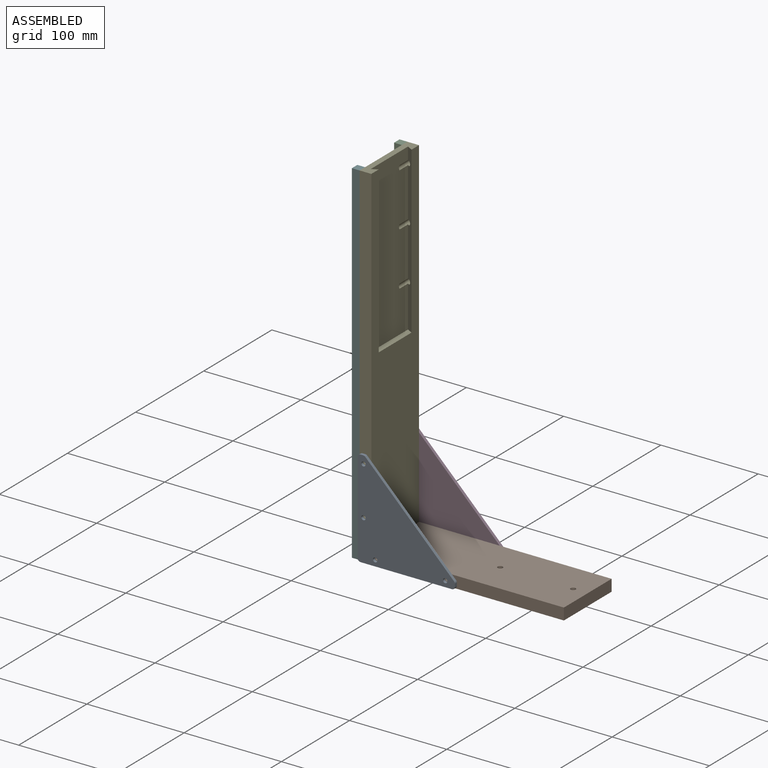
[diagram: assembled view]
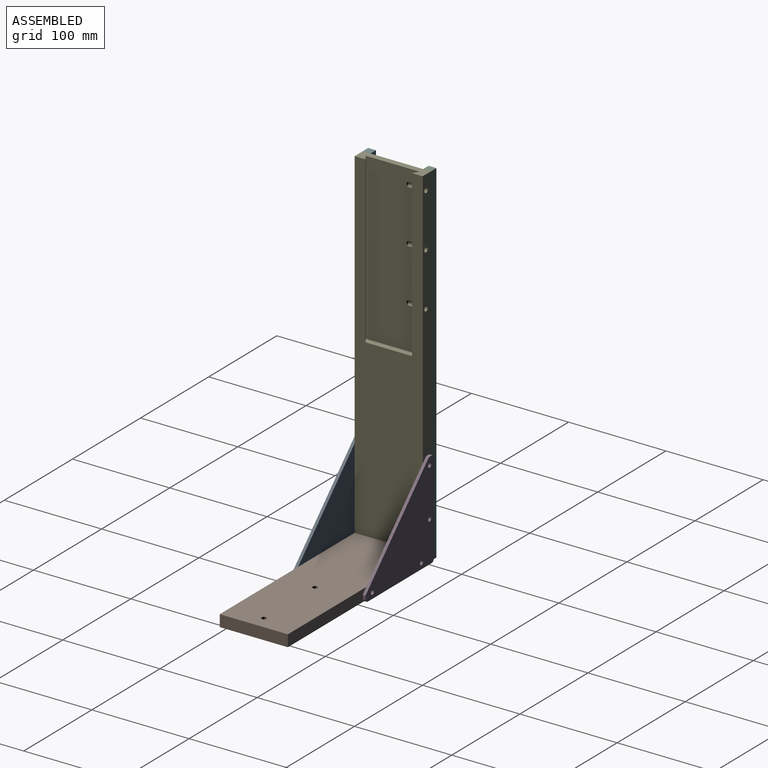
[diagram: assembled view, second angle]
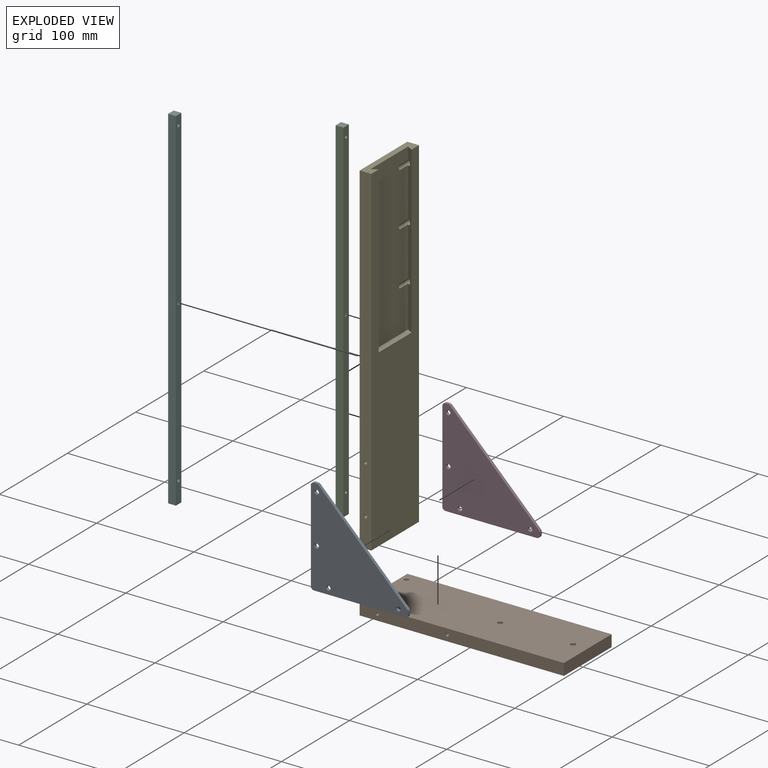
[diagram: exploded view]
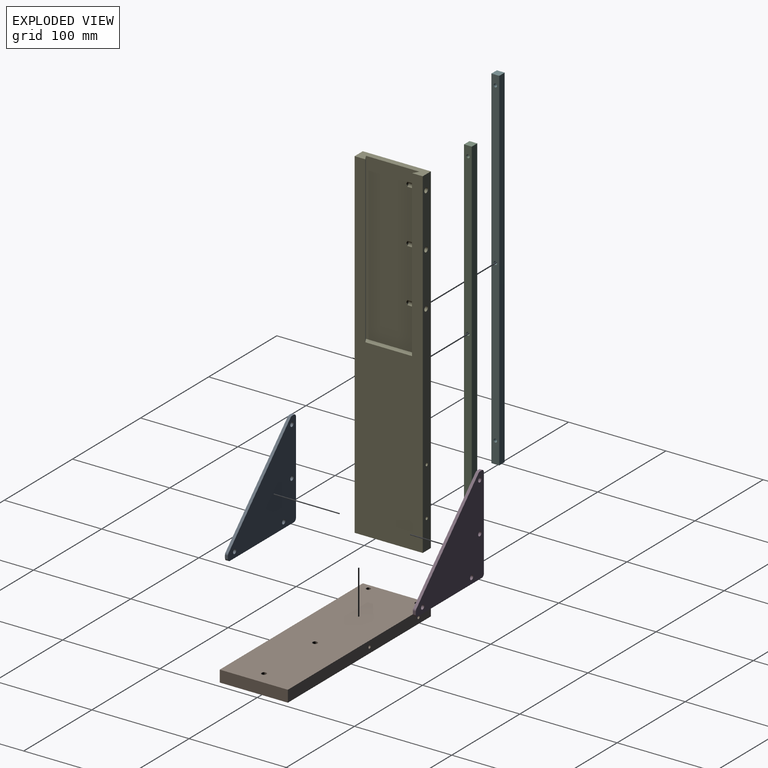
[diagram: exploded view, second angle]
ASSEMBLY  parts=6 mates=5
PART A: 16 faces, bbox 100x100x3 mm
  f0: plane 3x2.76mm, normal (0,1,0), area 8.3mm2, adj f1,f8,f9,f10
  f1: cylinder r=3mm len=3mm, axis (0,0,1), area 14.1mm2, adj f0,f2,f8,f9
  f2: plane 94x3mm, normal (-1,0,0), area 282mm2, adj f1,f3,f8,f9
  f3: cylinder r=3mm len=3mm, axis (0,0,1), area 14.1mm2, adj f2,f4,f8,f9
  f4: plane 94x3mm, normal (0,-1,0), area 282mm2, adj f3,f5,f8,f9
  f5: cylinder r=3mm len=3mm, axis (0,0,1), area 14.1mm2, adj f4,f6,f8,f9
  f6: plane 3x2.76mm, normal (1,0,0), area 8.3mm2, adj f5,f8,f9,f11
  f7: plane 91.24x91.24mm, normal (0.71,0.71,0), area 387.1mm2, adj f8,f9,f10,f11
  f8: plane 100x100mm, normal (0,0,1), area 5605.7mm2, adj f0,f1,f2,f3,f4,f5,f6,f7
  f9: plane 100x100mm, normal (0,0,-1), area 5605.7mm2, adj f0,f1,f2,f3,f4,f5,f6,f7
  f10: cylinder r=3mm len=3mm, axis (0,0,1), area 7.1mm2, adj f0,f7,f8,f9
  f11: cylinder r=3mm len=3mm, axis (0,0,1), area 7.1mm2, adj f6,f7,f8,f9
  f12: cylinder r=2.25mm len=4.5mm, axis (0,0,1), area 42.4mm2, adj f8,f9
  f13: cylinder r=2.25mm len=4.5mm, axis (0,0,1), area 42.4mm2, adj f8,f9
  f14: cylinder r=2.25mm len=4.5mm, axis (0,0,1), area 42.4mm2, adj f8,f9
  f15: cylinder r=2.25mm len=4.5mm, axis (0,0,1), area 42.4mm2, adj f8,f9
PART B: 22 faces, bbox 210x70x12 mm
  f0: plane 210x12mm, normal (0,-1,0), area 2503.9mm2, adj f1,f3,f4,f5,f19,f21
  f1: plane 70x12mm, normal (1,0,0), area 840mm2, adj f0,f2,f4,f5
  f2: plane 210x12mm, normal (0,1,0), area 2503.9mm2, adj f1,f3,f4,f5,f15,f17
  f3: plane 70x12mm, normal (-1,0,0), area 840mm2, adj f0,f2,f4,f5
  f4: plane 210x70mm, normal (0,0,1), area 14558.6mm2, adj f0,f1,f2,f3,f6,f7,f10,f13
  f5: plane 210x70mm, normal (0,0,-1), area 14627.3mm2, adj f0,f1,f2,f3,f6,f7,f8,f11
  f6: cylinder r=2.55mm len=12mm, axis (0,0,1), area 192.3mm2, adj f4,f5
  f7: cylinder r=2.55mm len=12mm, axis (0,0,1), area 192.3mm2, adj f4,f5
  f8: cylinder r=2.25mm len=8mm, axis (0,0,1), area 113.1mm2, adj f5,f9
  f9: plane 8x8mm, normal (0,0,1), area 34.4mm2, adj f8,f10
  f10: cylinder r=4mm len=8mm, axis (0,0,1), area 100.5mm2, adj f4,f9
  f11: cylinder r=2.25mm len=8mm, axis (0,0,1), area 113.1mm2, adj f5,f12
  f12: plane 8x8mm, normal (0,0,1), area 34.4mm2, adj f11,f13
  f13: cylinder r=4mm len=8mm, axis (0,0,1), area 100.5mm2, adj f4,f12
  f14: cone r=0mm half-angle=59deg, axis (0,1,0), area 9.4mm2, adj f15
  f15: cylinder r=1.6mm len=15mm, axis (0,1,0), area 150.8mm2, adj f2,f14
  f16: cone r=0mm half-angle=59deg, axis (0,1,0), area 9.4mm2, adj f17
  f17: cylinder r=1.6mm len=15mm, axis (0,1,0), area 150.8mm2, adj f2,f16
  f18: cone r=0mm half-angle=59deg, axis (0,-1,0), area 9.4mm2, adj f19
  f19: cylinder r=1.6mm len=15mm, axis (0,-1,0), area 150.8mm2, adj f0,f18
  f20: cone r=0mm half-angle=59deg, axis (0,-1,0), area 9.4mm2, adj f21
  f21: cylinder r=1.6mm len=15mm, axis (0,-1,0), area 150.8mm2, adj f0,f20
PART C: 12 faces, bbox 362x8x8 mm
  f0: plane 362x8mm, normal (0,-1,0), area 2896mm2, adj f1,f3,f4,f5
  f1: plane 8x8mm, normal (1,0,0), area 64mm2, adj f0,f2,f4,f5
  f2: plane 362x8mm, normal (0,1,0), area 2896mm2, adj f1,f3,f4,f5
  f3: plane 8x8mm, normal (-1,0,0), area 64mm2, adj f0,f2,f4,f5
  f4: plane 362x8mm, normal (0,0,1), area 2763.5mm2, adj f0,f1,f2,f3,f9,f10,f11
  f5: plane 362x8mm, normal (0,0,-1), area 2867.1mm2, adj f0,f1,f2,f3,f6,f7,f8
  f6: cylinder r=1.75mm len=6mm, axis (0,0,1), area 66mm2, adj f5,f10
  f7: cylinder r=1.75mm len=6mm, axis (0,0,1), area 66mm2, adj f5,f11
  f8: cylinder r=1.75mm len=6mm, axis (0,0,1), area 66mm2, adj f5,f9
  f9: cone r=1.75mm half-angle=45deg, axis (0,0,1), area 48.9mm2, adj f4,f8
  f10: cone r=1.75mm half-angle=45deg, axis (0,0,1), area 48.9mm2, adj f4,f6
  f11: cone r=1.75mm half-angle=45deg, axis (0,0,1), area 48.9mm2, adj f4,f7
PART D: same geometry as A
PART E: 40 faces, bbox 350x70x12 mm
  f0: plane 170x55mm, normal (0,0,1), area 9166.1mm2, adj f1,f7,f8,f9,f34,f35,f36,f37
  f1: plane 70x12mm, normal (1,0,0), area 531mm2, adj f0,f2,f3,f5,f6,f8,f9
  f2: plane 350x12mm, normal (0,-1,0), area 4122.6mm2, adj f1,f4,f5,f6,f19,f21,f35,f37
  f3: plane 350x12mm, normal (0,1,0), area 4183.9mm2, adj f1,f4,f5,f6,f15,f17
  f4: plane 70x12mm, normal (-1,0,0), area 823.9mm2, adj f2,f3,f5,f6,f11,f13
  f5: plane 350x70mm, normal (0,0,1), area 16340mm2, adj f1,f2,f3,f4,f7,f8,f9
  f6: plane 350x70mm, normal (0,0,-1), area 24470.5mm2, adj f1,f2,f3,f4,f23,f25,f27,f29
  f7: plane 55x6mm, normal (1,0,0), area 309mm2, adj f0,f5,f8,f9
  f8: plane 170x6mm, normal (0,0.86,-0.5), area 1128.1mm2, adj f0,f1,f5,f7,f35,f37,f39
  f9: plane 170x6mm, normal (0,-0.86,-0.5), area 1180.9mm2, adj f0,f1,f5,f7
  f10: cone r=0mm half-angle=59deg, axis (-1,0,0), area 9.4mm2, adj f11
  f11: cylinder r=1.6mm len=15mm, axis (-1,0,0), area 150.8mm2, adj f4,f10
  f12: cone r=0mm half-angle=59deg, axis (-1,0,0), area 9.4mm2, adj f13
  f13: cylinder r=1.6mm len=15mm, axis (-1,0,0), area 150.8mm2, adj f4,f12
  f14: cone r=0mm half-angle=59deg, axis (0,1,0), area 9.4mm2, adj f15
  f15: cylinder r=1.6mm len=15mm, axis (0,1,0), area 150.8mm2, adj f3,f14
  f16: cone r=0mm half-angle=59deg, axis (0,1,0), area 9.4mm2, adj f17
  f17: cylinder r=1.6mm len=15mm, axis (0,1,0), area 150.8mm2, adj f3,f16
  f18: cone r=0mm half-angle=59deg, axis (0,-1,0), area 9.4mm2, adj f19
  f19: cylinder r=1.6mm len=15mm, axis (0,-1,0), area 150.8mm2, adj f2,f18
  f20: cone r=0mm half-angle=59deg, axis (0,-1,0), area 9.4mm2, adj f21
  f21: cylinder r=1.6mm len=15mm, axis (0,-1,0), area 150.8mm2, adj f2,f20
  f22: cone r=0mm half-angle=59deg, axis (0,0,-1), area 5.7mm2, adj f23
  f23: cylinder r=1.25mm len=5mm, axis (0,0,-1), area 39.3mm2, adj f6,f22
  f24: cone r=0mm half-angle=59deg, axis (0,0,-1), area 5.7mm2, adj f25
  f25: cylinder r=1.25mm len=5mm, axis (0,0,-1), area 39.3mm2, adj f6,f24
  f26: cone r=0mm half-angle=59deg, axis (0,0,-1), area 5.7mm2, adj f27
  f27: cylinder r=1.25mm len=5mm, axis (0,0,-1), area 39.3mm2, adj f6,f26
  f28: cone r=0mm half-angle=59deg, axis (0,0,-1), area 5.7mm2, adj f29
  f29: cylinder r=1.25mm len=5mm, axis (0,0,-1), area 39.3mm2, adj f6,f28
  f30: cone r=0mm half-angle=59deg, axis (0,0,-1), area 5.7mm2, adj f31
  f31: cylinder r=1.25mm len=5mm, axis (0,0,-1), area 39.3mm2, adj f6,f30
  f32: cone r=0mm half-angle=59deg, axis (0,0,-1), area 5.7mm2, adj f33
  f33: cylinder r=1.25mm len=5mm, axis (0,0,-1), area 39.3mm2, adj f6,f32
  f34: cone r=0mm half-angle=59deg, axis (0,-1,0), area 6.1mm2, adj f0,f35
  f35: cylinder r=2.55mm len=20mm, axis (0,-1,0), area 207.5mm2, adj f0,f2,f8,f34
  f36: cone r=0mm half-angle=59deg, axis (0,-1,0), area 6.1mm2, adj f0,f37
  f37: cylinder r=2.55mm len=20mm, axis (0,-1,0), area 207.5mm2, adj f0,f2,f8,f36
  f38: cone r=0mm half-angle=59deg, axis (0,-1,0), area 6.1mm2, adj f0,f39
  f39: cylinder r=2.55mm len=20mm, axis (0,-1,0), area 207.5mm2, adj f0,f2,f8,f38
PART F: same geometry as C
PLACE A rot(axis=(-0.58,-0.58,-0.58),120deg) t=(-55.07,-38,38)mm
PLACE B rot(axis=(1,0,0),180deg) t=(-0.07,0,0)mm
PLACE C rot(axis=(0,-1,0),90deg) t=(-105.07,31,169)mm
PLACE D rot(axis=(-0.58,-0.58,-0.58),120deg) t=(-55.07,35,38)mm
PLACE E rot(axis=(-0.71,0,-0.71),180deg) t=(-105.07,0,175)mm
PLACE F rot(axis=(0,-1,0),90deg) t=(-105.07,-31,169)mm
MATE fastened C.f8 <-> E.f26  axis (1,0,0) through (-105.07,31,340)mm
MATE fastened E.f24 <-> F.f8  axis (-1,0,0) through (-105.07,-31,340)mm
MATE fastened D.f12 <-> E.f14  axis (0,-1,0) through (-99.07,35,80)mm
MATE fastened E.f12 <-> B.f8  axis (0,0,-1) through (-99.07,25,0)mm
MATE fastened E.f14 <-> A.f12  axis (0,-1,0) through (-99.07,-35,80)mm
